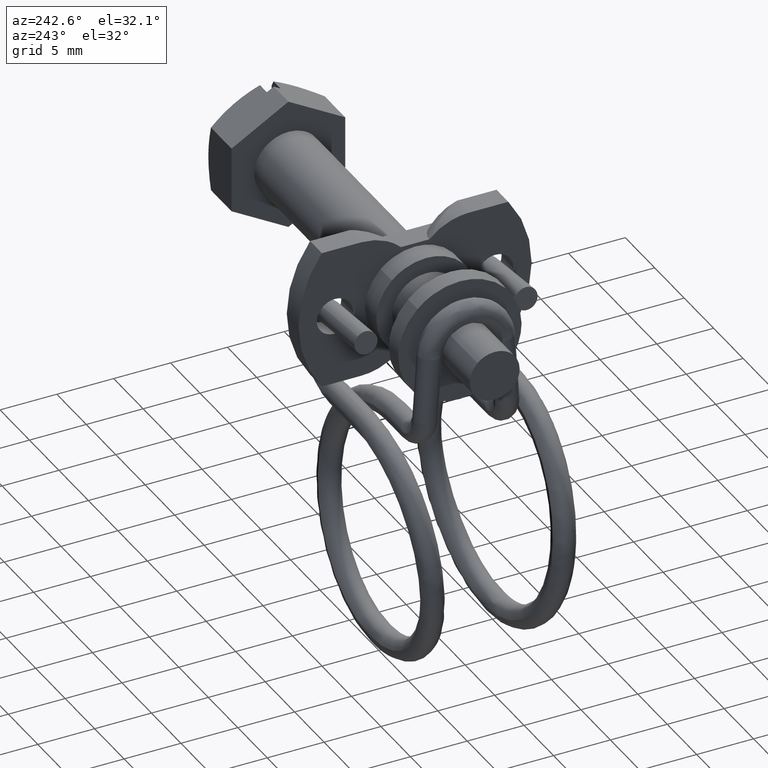
[diagram: clean part render]
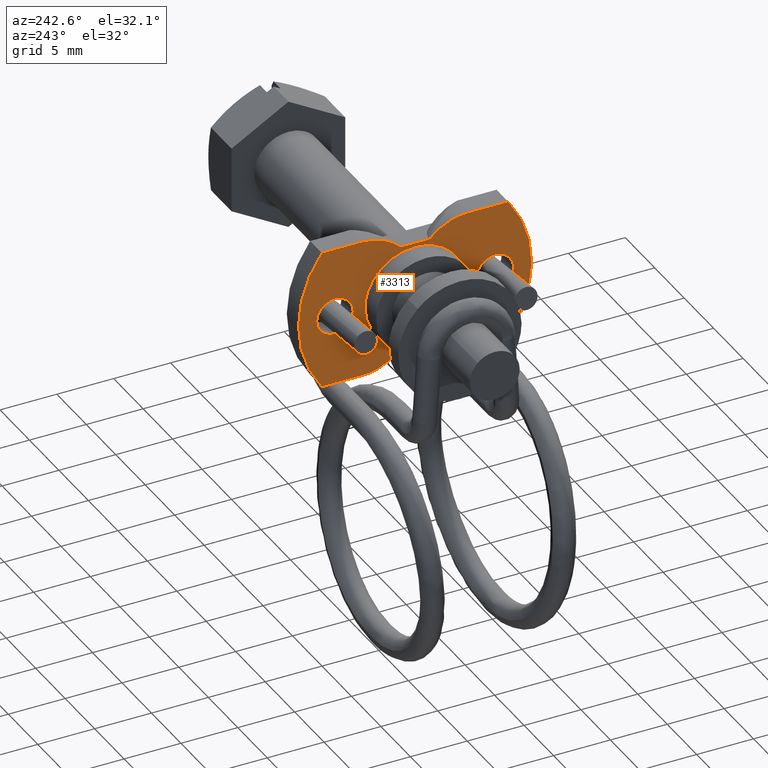
[diagram: same view with one face highlighted and labeled with its STEP entity id]
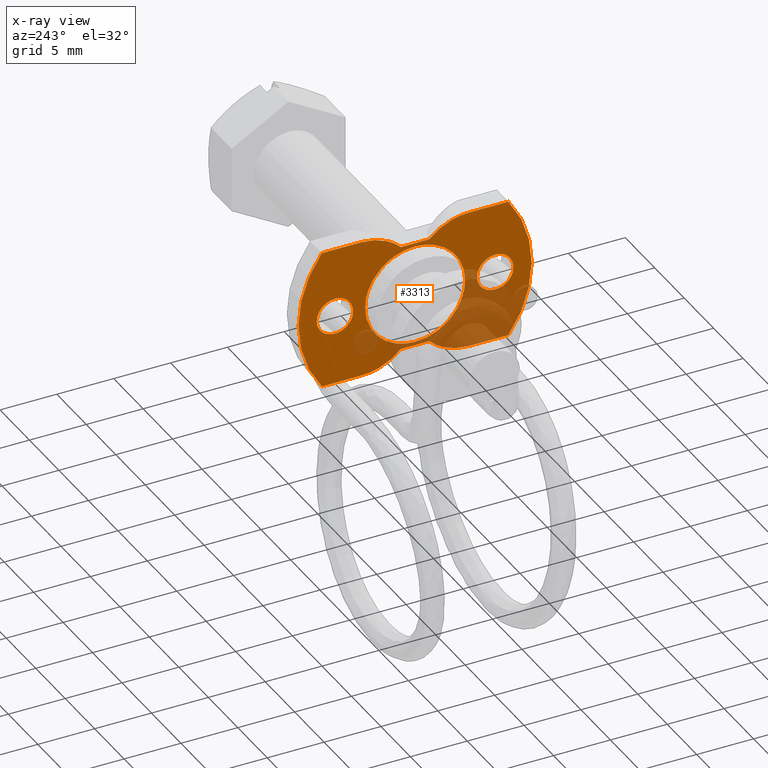
[diagram: x-ray of the same camera — body ghosted, the highlighted face saturated]
A machine part, auxiliary view. The second image highlights one B-rep face of the part: STEP entity #3313.
The next image is the same camera in x-ray: the body ghosted, the highlighted face saturated — about 27% of this face is hidden behind the body in this view.
In plain terms, the highlighted face is a freeform B-spline surface patch.
Its self-contained STEP definition (entity closure, byte-faithful):
#1896=CARTESIAN_POINT('',(-21.499999999993701,3.028760035310520,3.191647112619652));
#1897=VERTEX_POINT('',#1896);
#1903=CARTESIAN_POINT('',(-21.499999999993712,4.399999999990472,-0.000000617631629));
#1904=VERTEX_POINT('',#1903);
#1905=CARTESIAN_POINT('',(-21.499999999993701,3.028760035310520,3.191647112619652));
#1906=CARTESIAN_POINT('',(-21.499999999993712,3.224402804779120,3.006032184707540));
#1907=CARTESIAN_POINT('',(-21.499999999993680,3.507503764588737,2.682937092058763));
#1908=CARTESIAN_POINT('',(-21.499999999993769,3.871494091693143,2.119805863965142));
#1909=CARTESIAN_POINT('',(-21.499999999993619,4.132415646751660,1.561969776455390));
#1910=CARTESIAN_POINT('',(-21.499999999993761,4.345279316092196,0.827621417432251));
#1911=CARTESIAN_POINT('',(-21.499999999993701,4.400054070455219,0.306882413025482));
#1912=CARTESIAN_POINT('',(-21.499999999993712,4.399999999990472,-0.000000617631629));
#1913=B_SPLINE_CURVE_WITH_KNOTS('',3,(#1905,#1906,#1907,#1908,#1909,#1910,#1911,#1912),.UNSPECIFIED.,.F.,.U.,(4,1,1,1,1,4),(7.061009E-009,0.809043248580874,1.283313299159685,2.008656418493362,2.650314559582562,3.570950174490511),.UNSPECIFIED.);
#1914=EDGE_CURVE('',#1897,#1904,#1913,.T.);
#1916=CARTESIAN_POINT('',(-21.499999999993701,0.0,-4.399999999990516));
#1917=VERTEX_POINT('',#1916);
#1918=CARTESIAN_POINT('',(-21.499999999993712,4.399999999990472,-0.000000617631629));
#1919=CARTESIAN_POINT('',(-21.499999999993712,4.400126523906302,-0.377987726344622));
#1920=CARTESIAN_POINT('',(-21.499999999993719,4.322954006551723,-0.971875291591093));
#1921=CARTESIAN_POINT('',(-21.499999999993658,4.035278912883549,-1.808119944005881));
#1922=CARTESIAN_POINT('',(-21.499999999993769,3.703897385699409,-2.410195404086687));
#1923=CARTESIAN_POINT('',(-21.499999999993619,3.260112334412507,-2.978827958941799));
#1924=CARTESIAN_POINT('',(-21.499999999993740,2.736784120018546,-3.477114315881372));
#1925=CARTESIAN_POINT('',(-21.499999999994110,2.130392746268649,-3.871603456539438));
#1926=CARTESIAN_POINT('',(-21.499999999993189,1.454469812580428,-4.171214561010903));
#1927=CARTESIAN_POINT('',(-21.499999999993999,0.773940596633271,-4.355050985377251));
#1928=CARTESIAN_POINT('',(-21.499999999993729,0.251980744064681,-4.400019535479895));
#1929=CARTESIAN_POINT('',(-21.499999999993701,0.0,-4.399999999990516));
#1930=B_SPLINE_CURVE_WITH_KNOTS('',3,(#1918,#1919,#1920,#1921,#1922,#1923,#1924,#1925,#1926,#1927,#1928,#1929),.UNSPECIFIED.,.F.,.U.,(4,1,1,1,1,1,1,1,1,4),(8.083036E-009,1.133923531166312,1.781883540410587,2.645832915168722,3.185797142110887,3.941735796745550,4.805683769116632,5.345649755896358,6.155601393082988,6.911546856526043),.UNSPECIFIED.);
#1931=EDGE_CURVE('',#1904,#1917,#1930,.T.);
#1933=CARTESIAN_POINT('',(-21.499999999993701,-3.028760035310536,-3.191647112619669));
#1934=VERTEX_POINT('',#1933);
#1935=CARTESIAN_POINT('',(-21.499999999993701,0.0,-4.399999999990516));
#1936=CARTESIAN_POINT('',(-21.499999999993641,-0.278381021351011,-4.400029516999323));
#1937=CARTESIAN_POINT('',(-21.499999999993779,-0.782932536804892,-4.351947585065767));
#1938=CARTESIAN_POINT('',(-21.499999999993669,-1.590924470233283,-4.131072376335986));
#1939=CARTESIAN_POINT('',(-21.499999999993669,-2.345218956564229,-3.760416603508389));
#1940=CARTESIAN_POINT('',(-21.499999999993669,-2.826845790177947,-3.383286631947911));
#1941=CARTESIAN_POINT('',(-21.499999999993701,-3.028760035310536,-3.191647112619669));
#1942=B_SPLINE_CURVE_WITH_KNOTS('',3,(#1935,#1936,#1937,#1938,#1939,#1940,#1941),.UNSPECIFIED.,.F.,.U.,(4,1,1,1,4),(2.467694E-009,0.835144933835471,1.513702123974646,2.505434796565752,3.340579727928219),.UNSPECIFIED.);
#1943=EDGE_CURVE('',#1917,#1934,#1942,.T.);
#1977=CARTESIAN_POINT('',(-21.499999999993701,-4.399999999990472,0.000000617631537));
#1978=VERTEX_POINT('',#1977);
#1979=CARTESIAN_POINT('',(-21.499999999993701,-3.028760035310536,-3.191647112619669));
#1980=CARTESIAN_POINT('',(-21.499999999993719,-3.210894074655441,-3.018821712559593));
#1981=CARTESIAN_POINT('',(-21.499999999993669,-3.582684640072967,-2.600026283766916));
#1982=CARTESIAN_POINT('',(-21.499999999993769,-3.974094801600545,-1.940742569110200));
#1983=CARTESIAN_POINT('',(-21.499999999993651,-4.211378271996259,-1.312896248177623));
#1984=CARTESIAN_POINT('',(-21.499999999993619,-4.360540426097093,-0.697440217733809));
#1985=CARTESIAN_POINT('',(-21.499999999993989,-4.400029200864036,-0.269682631046893));
#1986=CARTESIAN_POINT('',(-21.499999999993701,-4.399999999990472,0.000000617631537));
#1987=B_SPLINE_CURVE_WITH_KNOTS('',3,(#1979,#1980,#1981,#1982,#1983,#1984,#1985,#1986),.UNSPECIFIED.,.F.,.U.,(4,1,1,1,1,4),(7.061780E-009,0.753246920634274,1.673884881142368,2.287636882386027,2.761906932971002,3.570950174490419),.UNSPECIFIED.);
#1988=EDGE_CURVE('',#1934,#1978,#1987,.T.);
#1990=CARTESIAN_POINT('',(-21.499999999993701,0.0,4.399999999990516));
#1991=VERTEX_POINT('',#1990);
#1992=CARTESIAN_POINT('',(-21.499999999993701,-4.399999999990472,0.000000617631537));
#1993=CARTESIAN_POINT('',(-21.499999999993751,-4.400115446417176,0.377983193363104));
#1994=CARTESIAN_POINT('',(-21.499999999993630,-4.313639902003546,1.043880583913343));
#1995=CARTESIAN_POINT('',(-21.499999999993729,-4.004856553400363,1.874539990450008));
#1996=CARTESIAN_POINT('',(-21.499999999993690,-3.641326647071852,2.498237704598787));
#1997=CARTESIAN_POINT('',(-21.499999999993669,-3.235352899196964,3.005490613705321));
#1998=CARTESIAN_POINT('',(-21.499999999993680,-2.732896806164625,3.472255562611102));
#1999=CARTESIAN_POINT('',(-21.499999999993939,-2.162116839705689,3.853644938553015));
#2000=CARTESIAN_POINT('',(-21.499999999993751,-1.489369857106990,4.161785379552336));
#2001=CARTESIAN_POINT('',(-21.499999999993161,-0.773941779344200,4.355057391660471));
#2002=CARTESIAN_POINT('',(-21.499999999994309,-0.251980410471873,4.400016066886016));
#2003=CARTESIAN_POINT('',(-21.499999999993701,0.0,4.399999999990516));
#2004=B_SPLINE_CURVE_WITH_KNOTS('',3,(#1992,#1993,#1994,#1995,#1996,#1997,#1998,#1999,#2000,#2001,#2002,#2003),.UNSPECIFIED.,.F.,.U.,(4,1,1,1,1,1,1,1,1,4),(8.083218E-009,1.133923531166489,1.997870797620320,2.645832915168891,3.293788445445524,3.941735796745680,4.697690202089703,5.345649755896414,6.155601393083041,6.911546856526091),.UNSPECIFIED.);
#2005=EDGE_CURVE('',#1978,#1991,#2004,.T.);
#2007=CARTESIAN_POINT('',(-21.499999999993701,0.0,4.399999999990516));
#2008=CARTESIAN_POINT('',(-21.499999999993729,0.243582943675486,4.400019900557328));
#2009=CARTESIAN_POINT('',(-21.499999999993609,0.713345111544476,4.360889596921495));
#2010=CARTESIAN_POINT('',(-21.499999999993939,1.340014986093854,4.205419395825605));
#2011=CARTESIAN_POINT('',(-21.499999999993339,1.890424648023483,3.985818044971250));
#2012=CARTESIAN_POINT('',(-21.499999999994081,2.455286768420521,3.674180229913418));
#2013=CARTESIAN_POINT('',(-21.499999999993658,2.826849796193724,3.383295226854551));
#2014=CARTESIAN_POINT('',(-21.499999999993701,3.028760035310520,3.191647112619652));
#2015=B_SPLINE_CURVE_WITH_KNOTS('',3,(#2007,#2008,#2009,#2010,#2011,#2012,#2013,#2014),.UNSPECIFIED.,.F.,.U.,(4,1,1,1,1,4),(2.468000E-009,0.730750825131852,1.409309721910016,1.931270008483067,2.505434796565778,3.340579727928208),.UNSPECIFIED.);
#2016=EDGE_CURVE('',#1991,#1897,#2015,.T.);
#2080=CARTESIAN_POINT('',(-21.500000000008850,-5.948632778333477,-1.160598914674537));
#2081=VERTEX_POINT('',#2080);
#2087=CARTESIAN_POINT('',(-21.500000000008850,-7.050000000000209,-1.600000000000000));
#2088=VERTEX_POINT('',#2087);
#2089=CARTESIAN_POINT('',(-21.500000000008850,-7.050000000000209,-1.600000000000000));
#2090=CARTESIAN_POINT('',(-21.500000000008850,-6.961425047817328,-1.600003837580893));
#2091=CARTESIAN_POINT('',(-21.500000000008932,-6.765290557446340,-1.583682021971616));
#2092=CARTESIAN_POINT('',(-21.500000000008690,-6.483133087639962,-1.506532459602505));
#2093=CARTESIAN_POINT('',(-21.500000000009091,-6.198090297677315,-1.366467061001801));
#2094=CARTESIAN_POINT('',(-21.500000000008630,-6.031230482454805,-1.239002231278569));
#2095=CARTESIAN_POINT('',(-21.500000000008850,-5.948632778333477,-1.160598914674537));
#2096=B_SPLINE_CURVE_WITH_KNOTS('',3,(#2089,#2090,#2091,#2092,#2093,#2094,#2095),.UNSPECIFIED.,.F.,.U.,(4,1,1,1,4),(0.000000010747616,0.265727188743374,0.588404386471852,0.873105291499716,1.214756216260050),.UNSPECIFIED.);
#2097=EDGE_CURVE('',#2088,#2081,#2096,.T.);
#2099=CARTESIAN_POINT('',(-21.500000000008850,-8.650000000000130,-0.000000503558067));
#2100=VERTEX_POINT('',#2099);
#2101=CARTESIAN_POINT('',(-21.500000000008850,-8.650000000000130,-0.000000503558067));
#2102=CARTESIAN_POINT('',(-21.500000000008828,-8.650071738478289,-0.157085728830399));
#2103=CARTESIAN_POINT('',(-21.500000000008889,-8.608209243955415,-0.438482323906336));
#2104=CARTESIAN_POINT('',(-21.500000000008839,-8.466002428118747,-0.764666223872279));
#2105=CARTESIAN_POINT('',(-21.500000000008839,-8.282101294123697,-1.036268217793599));
#2106=CARTESIAN_POINT('',(-21.500000000008850,-8.076946875012382,-1.241435755845188));
#2107=CARTESIAN_POINT('',(-21.500000000008839,-7.819290245747831,-1.411274205380092));
#2108=CARTESIAN_POINT('',(-21.500000000008910,-7.494999832201196,-1.555090405191575));
#2109=CARTESIAN_POINT('',(-21.500000000008772,-7.226728416373897,-1.600098193221100));
#2110=CARTESIAN_POINT('',(-21.500000000008850,-7.050000000000209,-1.600000000000000));
#2111=B_SPLINE_CURVE_WITH_KNOTS('',3,(#2101,#2102,#2103,#2104,#2105,#2106,#2107,#2108,#2109,#2110),.UNSPECIFIED.,.F.,.U.,(4,1,1,1,1,1,1,4),(0.000000046388103,0.471237988059670,0.844308999018958,1.060301839532636,1.452988991450781,1.708250186988423,1.983145178126162,2.513289608788151),.UNSPECIFIED.);
#2112=EDGE_CURVE('',#2100,#2088,#2111,.T.);
#2114=CARTESIAN_POINT('',(-21.500000000008850,-8.151367221666945,1.160598914674539));
#2115=VERTEX_POINT('',#2114);
#2116=CARTESIAN_POINT('',(-21.500000000008850,-8.151367221666945,1.160598914674539));
#2117=CARTESIAN_POINT('',(-21.500000000008800,-8.288848472221424,1.030329545573778));
#2118=CARTESIAN_POINT('',(-21.500000000008900,-8.451444012328597,0.808833962696705));
#2119=CARTESIAN_POINT('',(-21.500000000008811,-8.612611874509501,0.405740139024066));
#2120=CARTESIAN_POINT('',(-21.500000000008939,-8.650082176306485,0.162327146846996));
#2121=CARTESIAN_POINT('',(-21.500000000008850,-8.650000000000130,-0.000000503558067));
#2122=B_SPLINE_CURVE_WITH_KNOTS('',3,(#2116,#2117,#2118,#2119,#2120,#2121),.UNSPECIFIED.,.F.,.U.,(4,1,1,4),(0.000000013231740,0.568114953065881,0.811583625008262,1.298534133710986),.UNSPECIFIED.);
#2123=EDGE_CURVE('',#2115,#2100,#2122,.T.);
#2163=CARTESIAN_POINT('',(-21.500000000008850,-7.050000000000209,1.600000000000000));
#2164=VERTEX_POINT('',#2163);
#2165=CARTESIAN_POINT('',(-21.500000000008850,-7.050000000000209,1.600000000000000));
#2166=CARTESIAN_POINT('',(-21.500000000008932,-7.220840606282236,1.600102153511239));
#2167=CARTESIAN_POINT('',(-21.500000000008761,-7.480166929375566,1.558040992606426));
#2168=CARTESIAN_POINT('',(-21.500000000008981,-7.853880684568248,1.398548595532117));
#2169=CARTESIAN_POINT('',(-21.500000000008690,-8.045845886499851,1.260811753010092));
#2170=CARTESIAN_POINT('',(-21.500000000008850,-8.151367221666945,1.160598914674539));
#2171=B_SPLINE_CURVE_WITH_KNOTS('',3,(#2165,#2166,#2167,#2168,#2169,#2170),.UNSPECIFIED.,.F.,.U.,(4,1,1,4),(0.000000010746730,0.512475742291308,0.778200224593005,1.214756216260056),.UNSPECIFIED.);
#2172=EDGE_CURVE('',#2164,#2115,#2171,.T.);
#2174=CARTESIAN_POINT('',(-21.500000000008850,-5.450000000000289,0.000000503558084));
#2175=VERTEX_POINT('',#2174);
#2176=CARTESIAN_POINT('',(-21.500000000008850,-5.450000000000289,0.000000503558084));
#2177=CARTESIAN_POINT('',(-21.500000000008839,-5.449975435710508,0.124354739084400));
#2178=CARTESIAN_POINT('',(-21.500000000008839,-5.479900679794794,0.379601315718036));
#2179=CARTESIAN_POINT('',(-21.500000000008878,-5.608544203500188,0.725755726339594));
#2180=CARTESIAN_POINT('',(-21.500000000008839,-5.786072741179245,0.994940078559244));
#2181=CARTESIAN_POINT('',(-21.500000000008850,-6.003278383314925,1.223095921735599));
#2182=CARTESIAN_POINT('',(-21.500000000008921,-6.266111962899360,1.410646856649968));
#2183=CARTESIAN_POINT('',(-21.500000000008932,-6.631147882685288,1.561836647191425));
#2184=CARTESIAN_POINT('',(-21.500000000008679,-6.899460057495577,1.600060511835113));
#2185=CARTESIAN_POINT('',(-21.500000000008850,-7.050000000000209,1.600000000000000));
#2186=B_SPLINE_CURVE_WITH_KNOTS('',3,(#2176,#2177,#2178,#2179,#2180,#2181,#2182,#2183,#2184,#2185),.UNSPECIFIED.,.F.,.U.,(4,1,1,1,1,1,1,4),(0.000000046387139,0.373060249466405,0.765771490156008,1.099564474534782,1.335171471997155,1.708250186988321,2.061684250353920,2.513289608788142),.UNSPECIFIED.);
#2187=EDGE_CURVE('',#2175,#2164,#2186,.T.);
#2189=CARTESIAN_POINT('',(-21.500000000008850,-5.948632778333477,-1.160598914674537));
#2190=CARTESIAN_POINT('',(-21.500000000008811,-5.850490609166702,-1.067513556662859));
#2191=CARTESIAN_POINT('',(-21.500000000008878,-5.669407722425606,-0.845694808193891));
#2192=CARTESIAN_POINT('',(-21.500000000008860,-5.491777421057718,-0.446357703770805));
#2193=CARTESIAN_POINT('',(-21.500000000008821,-5.449956992325990,-0.148791706922629));
#2194=CARTESIAN_POINT('',(-21.500000000008850,-5.450000000000289,0.000000503558084));
#2195=B_SPLINE_CURVE_WITH_KNOTS('',3,(#2189,#2190,#2191,#2192,#2193,#2194),.UNSPECIFIED.,.F.,.U.,(4,1,1,4),(0.000000013232404,0.405794038953098,0.852160693154268,1.298534133710993),.UNSPECIFIED.);
#2196=EDGE_CURVE('',#2081,#2175,#2195,.T.);
#2285=CARTESIAN_POINT('',(-21.500000000008850,8.151367221666913,-1.160598914674537));
#2286=VERTEX_POINT('',#2285);
#2292=CARTESIAN_POINT('',(-21.500000000008850,7.050000000000180,-1.600000000000000));
#2293=VERTEX_POINT('',#2292);
#2294=CARTESIAN_POINT('',(-21.500000000008850,7.050000000000180,-1.600000000000000));
#2295=CARTESIAN_POINT('',(-21.500000000008828,7.220836838119915,-1.600086332618038));
#2296=CARTESIAN_POINT('',(-21.500000000008871,7.486497507447739,-1.557030547208268));
#2297=CARTESIAN_POINT('',(-21.500000000008772,7.859442227308781,-1.395222011853985));
#2298=CARTESIAN_POINT('',(-21.500000000008988,8.050430607706069,-1.256448466617598));
#2299=CARTESIAN_POINT('',(-21.500000000008850,8.151367221666913,-1.160598914674537));
#2300=B_SPLINE_CURVE_WITH_KNOTS('',3,(#2294,#2295,#2296,#2297,#2298,#2299),.UNSPECIFIED.,.F.,.U.,(4,1,1,4),(0.000000010747271,0.512475742291420,0.797183136992015,1.214756216260055),.UNSPECIFIED.);
#2301=EDGE_CURVE('',#2293,#2286,#2300,.T.);
#2303=CARTESIAN_POINT('',(-21.500000000008850,5.450000000000260,-0.000000503558067));
#2304=VERTEX_POINT('',#2303);
#2305=CARTESIAN_POINT('',(-21.500000000008850,5.450000000000260,-0.000000503558067));
#2306=CARTESIAN_POINT('',(-21.500000000008860,5.449975329408159,-0.124354360629608));
#2307=CARTESIAN_POINT('',(-21.500000000008789,5.476080121508193,-0.346870693278083));
#2308=CARTESIAN_POINT('',(-21.500000000008960,5.595745201018964,-0.701910010926064));
#2309=CARTESIAN_POINT('',(-21.500000000008651,5.767336378941759,-0.976613429704561));
#2310=CARTESIAN_POINT('',(-21.500000000008981,5.985897942797512,-1.203295534479183));
#2311=CARTESIAN_POINT('',(-21.500000000008811,6.195003414804757,-1.362410816204008));
#2312=CARTESIAN_POINT('',(-21.500000000008800,6.446676810188143,-1.491034990087349));
#2313=CARTESIAN_POINT('',(-21.500000000008999,6.735848336182561,-1.578748867934659));
#2314=CARTESIAN_POINT('',(-21.500000000008551,6.938737146049093,-1.600016914328834));
#2315=CARTESIAN_POINT('',(-21.500000000008850,7.050000000000180,-1.600000000000000));
#2316=B_SPLINE_CURVE_WITH_KNOTS('',3,(#2305,#2306,#2307,#2308,#2309,#2310,#2311,#2312,#2313,#2314,#2315),.UNSPECIFIED.,.F.,.U.,(4,1,1,1,1,1,1,1,4),(0.000000046388654,0.373060249467610,0.667593722211108,1.119210720587994,1.335171471997682,1.610074588754227,1.904602570706519,2.179500895321730,2.513289608788151),.UNSPECIFIED.);
#2317=EDGE_CURVE('',#2304,#2293,#2316,.T.);
#2319=CARTESIAN_POINT('',(-21.500000000008850,5.948632778333445,1.160598914674540));
#2320=VERTEX_POINT('',#2319);
#2321=CARTESIAN_POINT('',(-21.500000000008850,5.948632778333445,1.160598914674540));
#2322=CARTESIAN_POINT('',(-21.500000000008839,5.850489806892687,1.067512064562900));
#2323=CARTESIAN_POINT('',(-21.500000000008860,5.678042671933119,0.856256422039252));
#2324=CARTESIAN_POINT('',(-21.500000000008921,5.495669467385968,0.459854909156658));
#2325=CARTESIAN_POINT('',(-21.500000000008811,5.449930879072234,0.162323623603681));
#2326=CARTESIAN_POINT('',(-21.500000000008850,5.450000000000260,-0.000000503558067));
#2327=B_SPLINE_CURVE_WITH_KNOTS('',3,(#2321,#2322,#2323,#2324,#2325,#2326),.UNSPECIFIED.,.F.,.U.,(4,1,1,4),(0.000000013232706,0.405794038953286,0.811583625008718,1.298534133710973),.UNSPECIFIED.);
#2328=EDGE_CURVE('',#2320,#2304,#2327,.T.);
#2369=CARTESIAN_POINT('',(-21.500000000008850,7.050000000000180,1.600000000000000));
#2370=VERTEX_POINT('',#2369);
#2371=CARTESIAN_POINT('',(-21.500000000008850,7.050000000000180,1.600000000000000));
#2372=CARTESIAN_POINT('',(-21.500000000008821,6.910809729521390,1.600028917087793));
#2373=CARTESIAN_POINT('',(-21.500000000008850,6.619778282584308,1.561818572870705));
#2374=CARTESIAN_POINT('',(-21.500000000008850,6.243577340473575,1.401279693888368));
#2375=CARTESIAN_POINT('',(-21.500000000008921,6.031233597377794,1.238995250038349));
#2376=CARTESIAN_POINT('',(-21.500000000008850,5.948632778333445,1.160598914674540));
#2377=B_SPLINE_CURVE_WITH_KNOTS('',3,(#2371,#2372,#2373,#2374,#2375,#2376),.UNSPECIFIED.,.F.,.U.,(4,1,1,4),(0.000000010747650,0.417573090012799,0.873105291499635,1.214756216260055),.UNSPECIFIED.);
#2378=EDGE_CURVE('',#2370,#2320,#2377,.T.);
#2380=CARTESIAN_POINT('',(-21.500000000008850,8.650000000000100,0.000000503558082));
#2381=VERTEX_POINT('',#2380);
#2382=CARTESIAN_POINT('',(-21.500000000008850,8.650000000000100,0.000000503558082));
#2383=CARTESIAN_POINT('',(-21.500000000008850,8.650005304142796,0.098174761834243));
#2384=CARTESIAN_POINT('',(-21.500000000008828,8.629473845969045,0.320707462919365));
#2385=CARTESIAN_POINT('',(-21.500000000008900,8.533854268218128,0.629112202319528));
#2386=CARTESIAN_POINT('',(-21.500000000008772,8.364002409792594,0.933256115694048));
#2387=CARTESIAN_POINT('',(-21.500000000008999,8.138619699125751,1.191353427961791));
#2388=CARTESIAN_POINT('',(-21.500000000008662,7.861088757005704,1.391920925078836));
#2389=CARTESIAN_POINT('',(-21.500000000009059,7.501541179529982,1.553982019738071));
#2390=CARTESIAN_POINT('',(-21.500000000008750,7.226729561597312,1.600102698091865));
#2391=CARTESIAN_POINT('',(-21.500000000008850,7.050000000000180,1.600000000000000));
#2392=B_SPLINE_CURVE_WITH_KNOTS('',3,(#2382,#2383,#2384,#2385,#2386,#2387,#2388,#2389,#2390,#2391),.UNSPECIFIED.,.F.,.U.,(4,1,1,1,1,1,1,4),(0.000000046390347,0.294526322078529,0.667593722212184,0.962125987232520,1.335171471998139,1.688611342361616,1.983145178126527,2.513289608788142),.UNSPECIFIED.);
#2393=EDGE_CURVE('',#2381,#2370,#2392,.T.);
#2395=CARTESIAN_POINT('',(-21.500000000008850,8.151367221666913,-1.160598914674537));
#2396=CARTESIAN_POINT('',(-21.500000000008889,8.224962080981829,-1.090774821669785));
#2397=CARTESIAN_POINT('',(-21.500000000008850,8.363261426397573,-0.931937004162143));
#2398=CARTESIAN_POINT('',(-21.500000000008850,8.535542950496041,-0.631065943102443));
#2399=CARTESIAN_POINT('',(-21.500000000008860,8.631590224181958,-0.311107873922806));
#2400=CARTESIAN_POINT('',(-21.500000000008900,8.649999416947448,-0.087918977360101));
#2401=CARTESIAN_POINT('',(-21.500000000008850,8.650000000000100,0.000000503558082));
#2402=B_SPLINE_CURVE_WITH_KNOTS('',3,(#2395,#2396,#2397,#2398,#2399,#2400,#2401),.UNSPECIFIED.,.F.,.U.,(4,1,1,1,4),(0.000000013231643,0.304343516440806,0.628984797661334,1.034770021453323,1.298534133711000),.UNSPECIFIED.);
#2403=EDGE_CURVE('',#2286,#2381,#2402,.T.);
#2592=CARTESIAN_POINT('',(-21.500000000008850,1.249999999999662,4.700000000000000));
#2593=VERTEX_POINT('',#2592);
#2613=CARTESIAN_POINT('',(-21.500000000008850,-1.249999999999576,4.700000000000000));
#2614=VERTEX_POINT('',#2613);
#2615=CARTESIAN_POINT('',(-21.500000000008850,1.249999999999662,4.700000000000000));
#2616=CARTESIAN_POINT('',(-21.500000000008850,-1.249999999999576,4.700000000000000));
#2617=QUASI_UNIFORM_CURVE('',1,(#2615,#2616),.UNSPECIFIED.,.F.,.U.);
#2618=EDGE_CURVE('',#2593,#2614,#2617,.T.);
#2656=CARTESIAN_POINT('',(-21.500000000008850,4.725000000000000,6.150000000000119));
#2657=VERTEX_POINT('',#2656);
#2658=CARTESIAN_POINT('',(-21.500000000008850,4.725000000000000,6.150000000000119));
#2659=CARTESIAN_POINT('',(-21.500000000008871,4.443156344801067,6.150022742011513));
#2660=CARTESIAN_POINT('',(-21.500000000008850,3.879477291096991,6.101126415246068));
#2661=CARTESIAN_POINT('',(-21.500000000008871,3.088473090012898,5.891211054564910));
#2662=CARTESIAN_POINT('',(-21.500000000008821,2.480912574861279,5.617605826688126));
#2663=CARTESIAN_POINT('',(-21.500000000008779,1.858962947344195,5.244411182525929));
#2664=CARTESIAN_POINT('',(-21.500000000008932,1.490697134286679,4.943302172504007));
#2665=CARTESIAN_POINT('',(-21.500000000008850,1.249999999999662,4.700000000000000));
#2666=B_SPLINE_CURVE_WITH_KNOTS('',3,(#2658,#2659,#2660,#2661,#2662,#2663,#2664,#2665),.UNSPECIFIED.,.F.,.U.,(4,1,1,1,1,4),(6.476217E-009,0.845528295950369,1.691062301278055,2.445993222932016,2.838560740426161,3.865274398961229),.UNSPECIFIED.);
#2667=EDGE_CURVE('',#2657,#2593,#2666,.T.);
#2704=CARTESIAN_POINT('',(-21.500000000008850,8.200000000000001,6.149999999999910));
#2705=VERTEX_POINT('',#2704);
#2711=CARTESIAN_POINT('',(-21.500000000008850,8.200000000000001,6.149999999999910));
#2712=CARTESIAN_POINT('',(-21.500000000008850,4.725000000000000,6.150000000000119));
#2713=QUASI_UNIFORM_CURVE('',1,(#2711,#2712),.UNSPECIFIED.,.F.,.U.);
#2714=EDGE_CURVE('',#2705,#2657,#2713,.T.);
#2753=CARTESIAN_POINT('',(-21.500000000008850,8.200000000000161,-6.149999999999790));
#2754=VERTEX_POINT('',#2753);
#2760=CARTESIAN_POINT('',(-21.500000000008850,8.200000000000161,-6.149999999999790));
#2761=CARTESIAN_POINT('',(-21.500000000008750,8.632963485199948,-5.572924487826410));
#2762=CARTESIAN_POINT('',(-21.500000000008921,9.119547035886937,-4.757020332583396));
#2763=CARTESIAN_POINT('',(-21.500000000008939,9.634440042452068,-3.537974528204337));
#2764=CARTESIAN_POINT('',(-21.500000000008662,9.993234911057416,-2.424542009216289));
#2765=CARTESIAN_POINT('',(-21.500000000009230,10.231201764177470,-1.066361191731411));
#2766=CARTESIAN_POINT('',(-21.500000000008519,10.266839486948900,0.223953362618418));
#2767=CARTESIAN_POINT('',(-21.500000000009379,10.179851115411880,1.338069309984039));
#2768=CARTESIAN_POINT('',(-21.500000000008580,9.978274783558245,2.455604296955154));
#2769=CARTESIAN_POINT('',(-21.500000000009130,9.650972395956496,3.507525084478212));
#2770=CARTESIAN_POINT('',(-21.500000000009020,9.102769338056481,4.787375027471390));
#2771=CARTESIAN_POINT('',(-21.500000000008662,8.612334541015722,5.600398794659114));
#2772=CARTESIAN_POINT('',(-21.500000000008850,8.200000000000001,6.149999999999910));
#2773=B_SPLINE_CURVE_WITH_KNOTS('',3,(#2760,#2761,#2762,#2763,#2764,#2765,#2766,#2767,#2768,#2769,#2770,#2771,#2772),.UNSPECIFIED.,.F.,.U.,(4,1,1,1,1,1,1,1,1,1,4),(0.000000013004190,2.164277234761995,2.834172837043271,3.967844012087713,5.668355249449038,6.956594713969660,7.832619466130192,9.017819291463660,10.357615583772660,11.130571985229709,13.191786622319270),.UNSPECIFIED.);
#2774=EDGE_CURVE('',#2754,#2705,#2773,.T.);
#2792=CARTESIAN_POINT('',(-21.500000000008850,4.725000000000000,-6.149999999999860));
#2793=VERTEX_POINT('',#2792);
#2799=CARTESIAN_POINT('',(-21.500000000008850,4.725000000000000,-6.149999999999860));
#2800=CARTESIAN_POINT('',(-21.500000000008850,8.200000000000161,-6.149999999999790));
#2801=QUASI_UNIFORM_CURVE('',1,(#2799,#2800),.UNSPECIFIED.,.F.,.U.);
#2802=EDGE_CURVE('',#2793,#2754,#2801,.T.);
#2823=CARTESIAN_POINT('',(-21.500000000008850,1.249999999999856,-4.700000000000000));
#2824=VERTEX_POINT('',#2823);
#2838=CARTESIAN_POINT('',(-21.500000000008850,1.249999999999856,-4.700000000000000));
#2839=CARTESIAN_POINT('',(-21.500000000008878,1.490699797452177,-4.943296695946854));
#2840=CARTESIAN_POINT('',(-21.500000000008779,1.984320656949074,-5.346938412559591));
#2841=CARTESIAN_POINT('',(-21.500000000008921,2.857692456811384,-5.814015971429026));
#2842=CARTESIAN_POINT('',(-21.500000000008729,3.768752518249135,-6.089216293772482));
#2843=CARTESIAN_POINT('',(-21.500000000008910,4.423025605117888,-6.150026815883014));
#2844=CARTESIAN_POINT('',(-21.500000000008850,4.725000000000000,-6.149999999999860));
#2845=B_SPLINE_CURVE_WITH_KNOTS('',3,(#2838,#2839,#2840,#2841,#2842,#2843,#2844),.UNSPECIFIED.,.F.,.U.,(4,1,1,1,4),(6.473264E-009,1.026713665009111,1.902447561587637,2.959350861252895,3.865274398960931),.UNSPECIFIED.);
#2846=EDGE_CURVE('',#2824,#2793,#2845,.T.);
#2865=CARTESIAN_POINT('',(-21.500000000008850,-1.249999999999772,-4.700000000000000));
#2866=VERTEX_POINT('',#2865);
#2886=CARTESIAN_POINT('',(-21.500000000008850,-1.249999999999772,-4.700000000000000));
#2887=CARTESIAN_POINT('',(-21.500000000008850,1.249999999999856,-4.700000000000000));
#2888=QUASI_UNIFORM_CURVE('',1,(#2886,#2887),.UNSPECIFIED.,.F.,.U.);
#2889=EDGE_CURVE('',#2866,#2824,#2888,.T.);
#3221=CARTESIAN_POINT('',(-21.500000000008800,-11.273964110424000,6.764384976160332));
#3222=CARTESIAN_POINT('',(-21.500000000008800,11.273973457922409,6.764384976160332));
#3223=CARTESIAN_POINT('',(-21.500000000008800,-11.273964110424000,-6.764385306071780));
#3224=CARTESIAN_POINT('',(-21.500000000008800,11.273973457922409,-6.764385306071780));
#3225=B_SPLINE_SURFACE_WITH_KNOTS('',1,1,((#3221,#3223),(#3222,#3224)),.UNSPECIFIED.,.F.,.F.,.U.,(2,2),(2,2),(0.0,22.547937568346409),(0.0,13.528770282232109),.UNSPECIFIED.);
#3226=CARTESIAN_POINT('',(-21.500000000008850,-4.724999999999910,6.150000000000119));
#3227=VERTEX_POINT('',#3226);
#3228=CARTESIAN_POINT('',(-21.500000000008850,-1.249999999999576,4.700000000000000));
#3229=CARTESIAN_POINT('',(-21.500000000008828,-1.526070015768727,4.979113553494335));
#3230=CARTESIAN_POINT('',(-21.500000000008878,-1.971148410345963,5.331625447973702));
#3231=CARTESIAN_POINT('',(-21.500000000008839,-2.688752135699620,5.721052745812750));
#3232=CARTESIAN_POINT('',(-21.500000000008821,-3.244627827469915,5.935063434855821));
#3233=CARTESIAN_POINT('',(-21.500000000008939,-3.949944047181289,6.106021013277021));
#3234=CARTESIAN_POINT('',(-21.500000000008779,-4.423023144312150,6.150033805619930));
#3235=CARTESIAN_POINT('',(-21.500000000008850,-4.724999999999910,6.150000000000119));
#3236=B_SPLINE_CURVE_WITH_KNOTS('',3,(#3228,#3229,#3230,#3231,#3232,#3233,#3234,#3235),.UNSPECIFIED.,.F.,.U.,(4,1,1,1,1,4),(6.475219E-009,1.177702237555086,1.691062301277809,2.445993222931910,2.959350861253366,3.865274398961228),.UNSPECIFIED.);
#3237=EDGE_CURVE('',#2614,#3227,#3236,.T.);
#3238=ORIENTED_EDGE('',*,*,#3237,.F.);
#3239=ORIENTED_EDGE('',*,*,#2618,.F.);
#3240=ORIENTED_EDGE('',*,*,#2667,.F.);
#3241=ORIENTED_EDGE('',*,*,#2714,.F.);
#3242=ORIENTED_EDGE('',*,*,#2774,.F.);
#3243=ORIENTED_EDGE('',*,*,#2802,.F.);
#3244=ORIENTED_EDGE('',*,*,#2846,.F.);
#3245=ORIENTED_EDGE('',*,*,#2889,.F.);
#3246=CARTESIAN_POINT('',(-21.500000000008850,-4.724999999999910,-6.149999999999790));
#3247=VERTEX_POINT('',#3246);
#3248=CARTESIAN_POINT('',(-21.500000000008850,-4.724999999999910,-6.149999999999790));
#3249=CARTESIAN_POINT('',(-21.500000000008850,-4.352556697557969,-6.150084650139529));
#3250=CARTESIAN_POINT('',(-21.500000000008889,-3.728517213306761,-6.078315540637475));
#3251=CARTESIAN_POINT('',(-21.500000000008779,-2.823506517144608,-5.792682701062225));
#3252=CARTESIAN_POINT('',(-21.500000000009059,-2.007813500707222,-5.366181187989737));
#3253=CARTESIAN_POINT('',(-21.500000000008750,-1.490701589339043,-4.943293031919284));
#3254=CARTESIAN_POINT('',(-21.500000000008850,-1.249999999999772,-4.700000000000000));
#3255=B_SPLINE_CURVE_WITH_KNOTS('',3,(#3248,#3249,#3250,#3251,#3252,#3253,#3254),.UNSPECIFIED.,.F.,.U.,(4,1,1,1,4),(6.474896E-009,1.117307018659338,1.872244205853417,2.838560740425828,3.865274398960917),.UNSPECIFIED.);
#3256=EDGE_CURVE('',#3247,#2866,#3255,.T.);
#3257=ORIENTED_EDGE('',*,*,#3256,.F.);
#3258=CARTESIAN_POINT('',(-21.500000000008850,-8.200000000000161,-6.149999999999780));
#3259=VERTEX_POINT('',#3258);
#3260=CARTESIAN_POINT('',(-21.500000000008850,-8.200000000000161,-6.149999999999780));
#3261=CARTESIAN_POINT('',(-21.500000000008850,-4.724999999999910,-6.149999999999790));
#3262=QUASI_UNIFORM_CURVE('',1,(#3260,#3261),.UNSPECIFIED.,.F.,.U.);
#3263=EDGE_CURVE('',#3259,#3247,#3262,.T.);
#3264=ORIENTED_EDGE('',*,*,#3263,.F.);
#3265=CARTESIAN_POINT('',(-21.500000000008850,-8.200000000000001,6.150000000000119));
#3266=VERTEX_POINT('',#3265);
#3267=CARTESIAN_POINT('',(-21.500000000008850,-8.200000000000001,6.150000000000119));
#3268=CARTESIAN_POINT('',(-21.500000000008772,-8.498899291516775,5.751513914898863));
#3269=CARTESIAN_POINT('',(-21.500000000009109,-8.926774053000530,5.084767773475083));
#3270=CARTESIAN_POINT('',(-21.500000000008640,-9.485860242595276,3.941949957329441));
#3271=CARTESIAN_POINT('',(-21.500000000009130,-9.884168331506899,2.822570089899272));
#3272=CARTESIAN_POINT('',(-21.500000000008750,-10.205199869938321,1.325068371317215));
#3273=CARTESIAN_POINT('',(-21.500000000008811,-10.297904742372261,-0.276602072794119));
#3274=CARTESIAN_POINT('',(-21.500000000008910,-10.093118659604350,-2.039700040366327));
#3275=CARTESIAN_POINT('',(-21.500000000008750,-9.705140113636913,-3.381128948163568));
#3276=CARTESIAN_POINT('',(-21.500000000008860,-9.102767309963088,-4.787374073845378));
#3277=CARTESIAN_POINT('',(-21.500000000008850,-8.612335468824137,-5.600399408533234));
#3278=CARTESIAN_POINT('',(-21.500000000008850,-8.200000000000161,-6.149999999999780));
#3279=B_SPLINE_CURVE_WITH_KNOTS('',3,(#3267,#3268,#3269,#3270,#3271,#3272,#3273,#3274,#3275,#3276,#3277,#3278),.UNSPECIFIED.,.F.,.U.,(4,1,1,1,1,1,1,1,1,4),(0.000000013000696,1.494381466694051,2.370395496708515,3.813251640139072,5.049982095432380,6.956594713968461,8.605574247884590,10.357615583772111,11.130571985229370,13.191786622319441),.UNSPECIFIED.);
#3280=EDGE_CURVE('',#3266,#3259,#3279,.T.);
#3281=ORIENTED_EDGE('',*,*,#3280,.F.);
#3282=CARTESIAN_POINT('',(-21.500000000008850,-4.724999999999910,6.150000000000119));
#3283=CARTESIAN_POINT('',(-21.500000000008850,-8.200000000000001,6.150000000000119));
#3284=QUASI_UNIFORM_CURVE('',1,(#3282,#3283),.UNSPECIFIED.,.F.,.U.);
#3285=EDGE_CURVE('',#3227,#3266,#3284,.T.);
#3286=ORIENTED_EDGE('',*,*,#3285,.F.);
#3287=EDGE_LOOP('',(#3238,#3239,#3240,#3241,#3242,#3243,#3244,#3245,#3257,#3264,#3281,#3286));
#3288=FACE_OUTER_BOUND('',#3287,.T.);
#3289=ORIENTED_EDGE('',*,*,#2317,.T.);
#3290=ORIENTED_EDGE('',*,*,#2301,.T.);
#3291=ORIENTED_EDGE('',*,*,#2403,.T.);
#3292=ORIENTED_EDGE('',*,*,#2393,.T.);
#3293=ORIENTED_EDGE('',*,*,#2378,.T.);
#3294=ORIENTED_EDGE('',*,*,#2328,.T.);
#3295=EDGE_LOOP('',(#3289,#3290,#3291,#3292,#3293,#3294));
#3296=FACE_BOUND('',#3295,.T.);
#3297=ORIENTED_EDGE('',*,*,#2112,.T.);
#3298=ORIENTED_EDGE('',*,*,#2097,.T.);
#3299=ORIENTED_EDGE('',*,*,#2196,.T.);
#3300=ORIENTED_EDGE('',*,*,#2187,.T.);
#3301=ORIENTED_EDGE('',*,*,#2172,.T.);
#3302=ORIENTED_EDGE('',*,*,#2123,.T.);
#3303=EDGE_LOOP('',(#3297,#3298,#3299,#3300,#3301,#3302));
#3304=FACE_BOUND('',#3303,.T.);
#3305=ORIENTED_EDGE('',*,*,#1931,.F.);
#3306=ORIENTED_EDGE('',*,*,#1914,.F.);
#3307=ORIENTED_EDGE('',*,*,#2016,.F.);
#3308=ORIENTED_EDGE('',*,*,#2005,.F.);
#3309=ORIENTED_EDGE('',*,*,#1988,.F.);
#3310=ORIENTED_EDGE('',*,*,#1943,.F.);
#3311=EDGE_LOOP('',(#3305,#3306,#3307,#3308,#3309,#3310));
#3312=FACE_BOUND('',#3311,.T.);
#3313=ADVANCED_FACE('',(#3288,#3296,#3304,#3312),#3225,.T.);